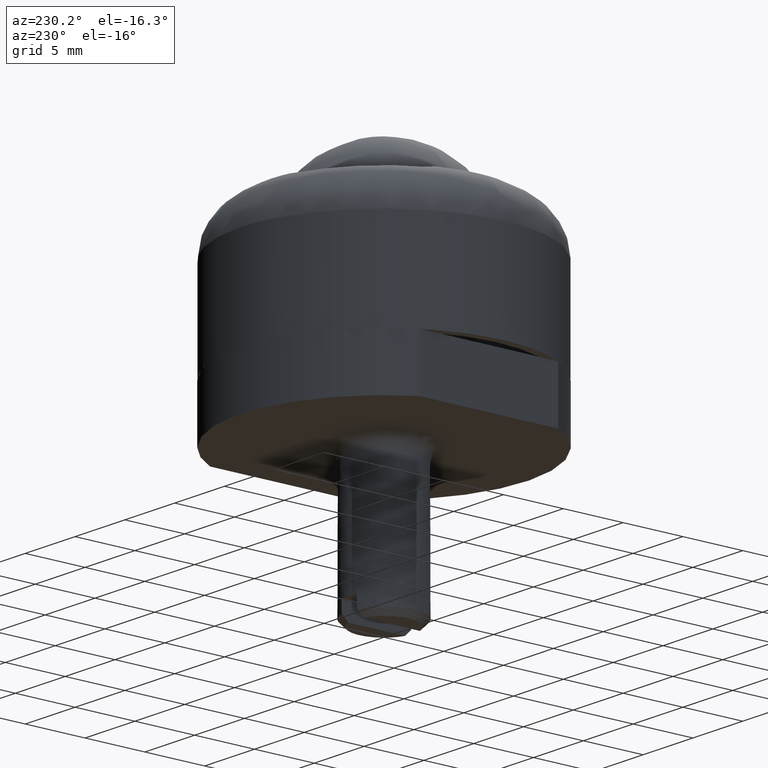
[diagram: clean part render]
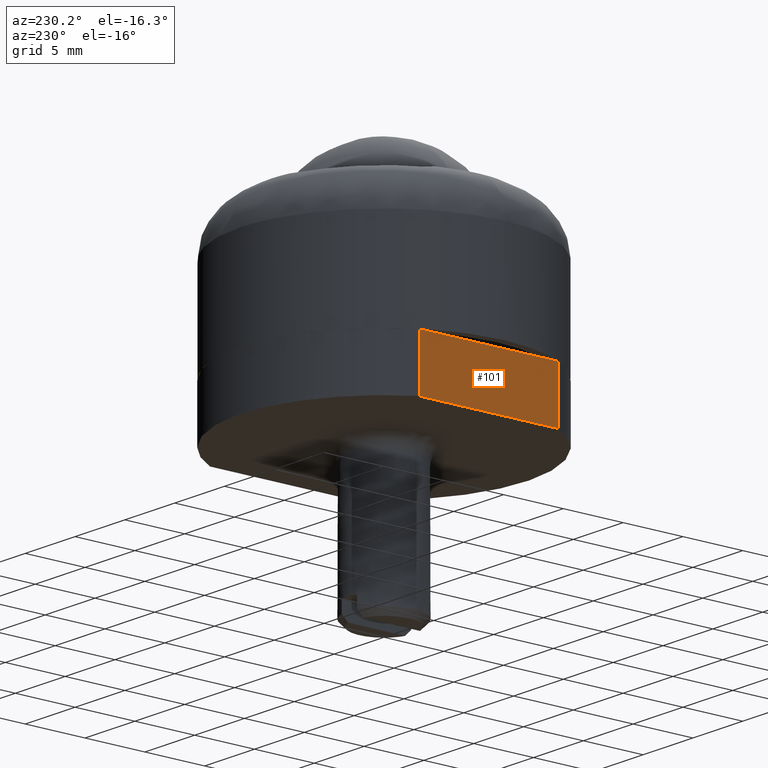
[diagram: same view with one face highlighted and labeled with its STEP entity id]
A machine part, auxiliary view. The second image highlights one B-rep face of the part: STEP entity #101.
In plain terms, the highlighted face is a freeform B-spline surface patch.
Its self-contained STEP definition (entity closure, byte-faithful):
#10=CARTESIAN_POINT('',(-10.500000000000000,5.809475019311110,0.0));
#11=VERTEX_POINT('',#10);
#35=CARTESIAN_POINT('',(-10.500000000000000,-5.809475019311050,0.0));
#36=VERTEX_POINT('',#35);
#37=CARTESIAN_POINT('',(-10.500000000000000,5.809475019311110,0.0));
#38=CARTESIAN_POINT('',(-10.500000000000000,-5.809475019311050,0.0));
#39=QUASI_UNIFORM_CURVE('',1,(#37,#38),.UNSPECIFIED.,.F.,.U.);
#40=EDGE_CURVE('',#11,#36,#39,.T.);
#74=CARTESIAN_POINT('',(-10.500000000000000,-6.389841551220448,0.224774991278124));
#75=CARTESIAN_POINT('',(-10.500000000000000,-6.389841551220448,-4.724775111977480));
#76=CARTESIAN_POINT('',(-10.500000000000000,6.389841862865032,0.224774991278124));
#77=CARTESIAN_POINT('',(-10.500000000000000,6.389841862865032,-4.724775111977480));
#78=B_SPLINE_SURFACE_WITH_KNOTS('',1,1,((#74,#76),(#75,#77)),.UNSPECIFIED.,.F.,.F.,.U.,(2,2),(2,2),(0.0,4.949550103255604),(0.0,12.779683414085479),.UNSPECIFIED.);
#79=CARTESIAN_POINT('',(-10.500000000000000,5.809475019311110,-4.499999999999949));
#80=VERTEX_POINT('',#79);
#81=CARTESIAN_POINT('',(-10.500000000000000,-5.809475019311050,-4.499999999999949));
#82=VERTEX_POINT('',#81);
#83=CARTESIAN_POINT('',(-10.500000000000000,5.809475019311110,-4.499999999999949));
#84=CARTESIAN_POINT('',(-10.500000000000000,-5.809475019311050,-4.499999999999949));
#85=QUASI_UNIFORM_CURVE('',1,(#83,#84),.UNSPECIFIED.,.F.,.U.);
#86=EDGE_CURVE('',#80,#82,#85,.T.);
#87=ORIENTED_EDGE('',*,*,#86,.T.);
#88=CARTESIAN_POINT('',(-10.500000000000000,-5.809475019311050,0.0));
#89=CARTESIAN_POINT('',(-10.500000000000000,-5.809475019311050,-4.499999999999949));
#90=QUASI_UNIFORM_CURVE('',1,(#88,#89),.UNSPECIFIED.,.F.,.U.);
#91=EDGE_CURVE('',#36,#82,#90,.T.);
#92=ORIENTED_EDGE('',*,*,#91,.F.);
#93=ORIENTED_EDGE('',*,*,#40,.F.);
#94=CARTESIAN_POINT('',(-10.500000000000000,5.809475019311110,0.0));
#95=CARTESIAN_POINT('',(-10.500000000000000,5.809475019311110,-4.499999999999949));
#96=QUASI_UNIFORM_CURVE('',1,(#94,#95),.UNSPECIFIED.,.F.,.U.);
#97=EDGE_CURVE('',#11,#80,#96,.T.);
#98=ORIENTED_EDGE('',*,*,#97,.T.);
#99=EDGE_LOOP('',(#87,#92,#93,#98));
#100=FACE_OUTER_BOUND('',#99,.T.);
#101=ADVANCED_FACE('',(#100),#78,.F.);